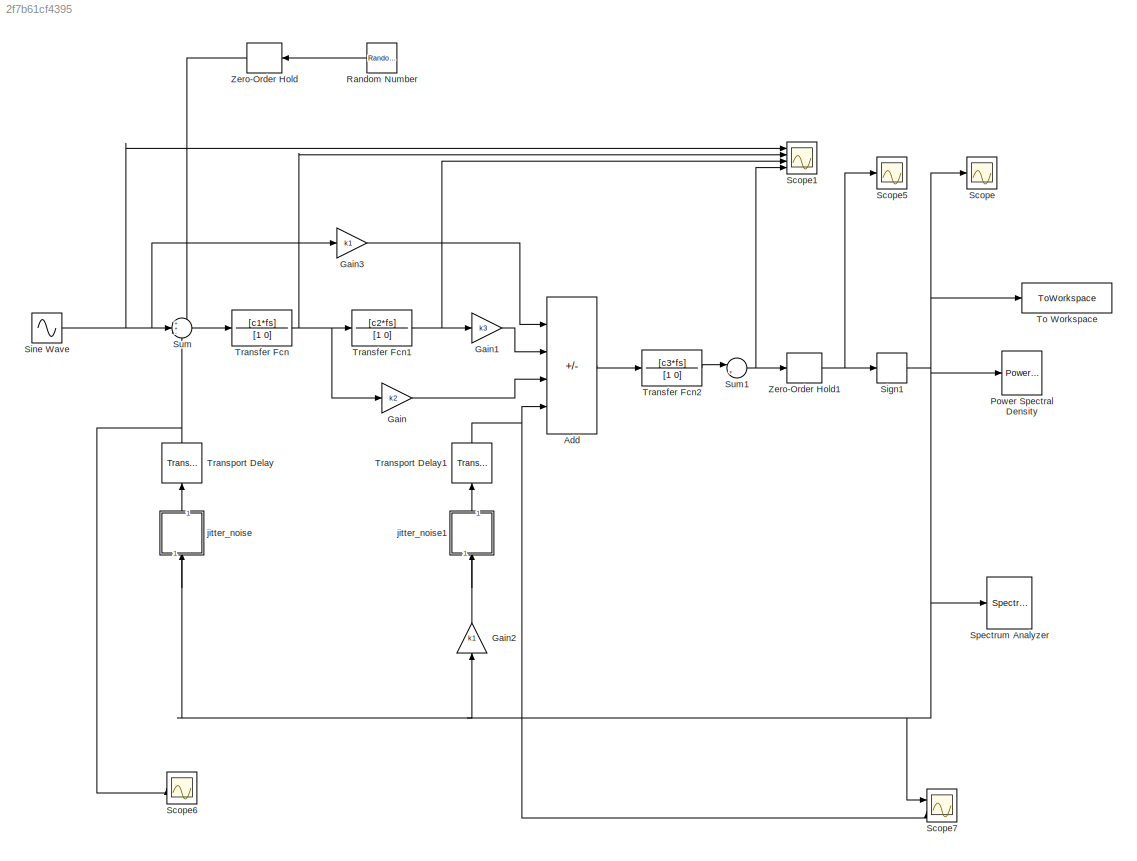
MODEL slx_2f7b61cf4395
KIND model
CONFIG AbsTol = auto
CONFIG EnableMultiTasking = off
CONFIG FixedStep = auto
CONFIG MaxStep = auto
CONFIG MinStep = auto
CONFIG RelTol = 1e-3
CONFIG SampleTimeConstraint = Unconstrained
CONFIG SolverName = VariableStepAuto
CONFIG StartTime = 0.0
CONFIG StopTime = time
BLOCK [Sum] Add
  IconShape = rectangular
  Inputs = +++-
  Ports = [4, 1]
BLOCK [Gain] Gain
  Gain = k2
BLOCK [Gain] Gain1
  Gain = k3
BLOCK [Gain] Gain2
  Gain = k1
  NameLocation = right
BLOCK [Gain] Gain3
  Gain = k1
BLOCK [Reference] Power Spectral Density  REF=SDtoolbox/Power Spectral Density
  Ports = [1]
  SourceBlock = SDtoolbox/Power Spectral Density
BLOCK [RandomNumber] Random Number
  SampleTime = Ts
  Variance = 6.91e-6^2
BLOCK [Scope] Scope
  Floating = off
  NumInputPorts = 1
  Ports = [1]
  ScopeSpecificationString = Simulink.scopes.TimeScopeBlockCfg('CurrentConfiguration', extmgr.ConfigurationSet(extmgr.Configuration('Core','General UI',true),extmgr.Configuration('Core','Source UI',true),extmgr.Configuration('Sources','WiredSimulink',true),extmgr.Configuration('Visuals','Time Domain',true,'SerializedDisplays',{struct('MinYLimReal','-1.25','MaxYLimReal','1.25','YLabelReal','','MinYLimMag','0.00000','MaxYLimMag...<+1409ch>
BLOCK [Scope] Scope1
  Floating = off
  NumInputPorts = 4
  Ports = [4]
  ScopeSpecificationString = Simulink.scopes.TimeScopeBlockCfg('CurrentConfiguration', extmgr.ConfigurationSet(extmgr.Configuration('Core','General UI',true),extmgr.Configuration('Core','Source UI',true),extmgr.Configuration('Sources','WiredSimulink',true,'DataLoggingVariableName','ScopeData1','DataLoggingSaveFormat','StructureWithTime'),extmgr.Configuration('Visuals','Time Domain',true,'SerializedDisplays',{struct('MinYLimRe...<+3509ch>
BLOCK [Scope] Scope5
  Floating = off
  NumInputPorts = 1
  Ports = [1]
  ScopeSpecificationString = Simulink.scopes.TimeScopeBlockCfg('CurrentConfiguration', extmgr.ConfigurationSet(extmgr.Configuration('Core','General UI',true),extmgr.Configuration('Core','Source UI',true),extmgr.Configuration('Sources','WiredSimulink',true,'DataLoggingVariableName','ScopeData5'),extmgr.Configuration('Visuals','Time Domain',true,'SerializedDisplays',{struct('MinYLimReal','-1.20793','MaxYLimReal','1.2083','YLabe...<+1448ch>
BLOCK [Scope] Scope6
  Floating = off
  NumInputPorts = 1
  Ports = [1]
  ScopeSpecificationString = Simulink.scopes.TimeScopeBlockCfg('CurrentConfiguration', extmgr.ConfigurationSet(extmgr.Configuration('Core','General UI',true),extmgr.Configuration('Core','Source UI',true),extmgr.Configuration('Sources','WiredSimulink',true,'DataLoggingVariableName','ScopeData1','DataLoggingSaveFormat','StructureWithTime'),extmgr.Configuration('Visuals','Time Domain',true,'SerializedDisplays',{struct('MinYLimRe...<+1621ch>
BLOCK [Scope] Scope7
  Floating = off
  NumInputPorts = 2
  Ports = [2]
  ScopeSpecificationString = Simulink.scopes.TimeScopeBlockCfg('CurrentConfiguration', extmgr.ConfigurationSet(extmgr.Configuration('Core','General UI',true),extmgr.Configuration('Core','Source UI',true),extmgr.Configuration('Sources','WiredSimulink',true,'DataLoggingVariableName','ScopeData2'),extmgr.Configuration('Visuals','Time Domain',true,'SerializedDisplays',{struct('MinYLimReal','-1.25','MaxYLimReal','1.25','YLabelReal...<+1492ch>
BLOCK [Signum] Sign1
BLOCK [Sin] Sine Wave
  Amplitude = 0.8
  Frequency = fin*2*pi
  Ports = [0, 1]
  SampleTime = 0
BLOCK [SpectrumAnalyzer] Spectrum Analyzer
  Ports = [1]
  ScopeSpecificationString = spbscopes.SpectrumAnalyzerBlockCfg('CurrentConfiguration', extmgr.ConfigurationSet(extmgr.Configuration('Core','General UI',true),extmgr.Configuration('Core','Source UI',true),extmgr.Configuration('Sources','WiredSimulink',true),extmgr.Configuration('Sources','SimulinkEvent',false),extmgr.Configuration('Sources','Simulink',false),extmgr.Configuration('Sources','SPTool',false),extmgr.Configuration(...<+4085ch>
BLOCK [Sum] Sum
  Inputs = ++-
  Ports = [3, 1]
BLOCK [Sum] Sum1
  Inputs = |+-
  Ports = [2, 1]
BLOCK [ToWorkspace] To Workspace
  FixptAsFi = on
  MaxDataPoints = inf
  Ports = [1]
  SampleTime = 1/fs
  VariableName = v
BLOCK [TransferFcn] Transfer Fcn
  Denominator = [1 0]
  Numerator = [c1*fs]
BLOCK [TransferFcn] Transfer Fcn1
  Denominator = [1 0]
  Numerator = [c2*fs]
BLOCK [TransferFcn] Transfer Fcn2
  Denominator = [1 0]
  Numerator = [c3*fs]
BLOCK [TransportDelay] Transport Delay
  DelayTime = Td
  NameLocation = right
  Ports = [1, 1]
BLOCK [TransportDelay] Transport Delay1
  DelayTime = Td
  NameLocation = right
  Ports = [1, 1]
BLOCK [ZeroOrderHold] Zero-Order Hold
  SampleTime = -1
BLOCK [ZeroOrderHold] Zero-Order Hold1
  SampleTime = 1/fs
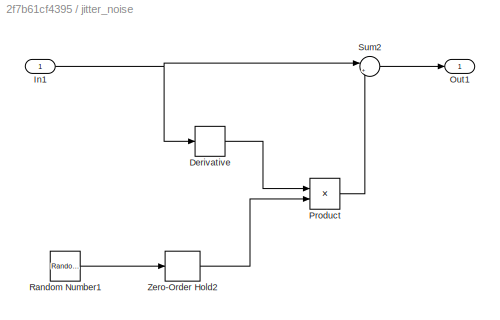
BLOCK [SubSystem] jitter_noise
  NameLocation = right
  Ports = [1, 1]
  RequestExecContextInheritance = off
BLOCK [Derivative] jitter_noise/Derivative
BLOCK [Inport] jitter_noise/In1
BLOCK [Outport] jitter_noise/Out1
BLOCK [Product] jitter_noise/Product
  Ports = [2, 1]
BLOCK [RandomNumber] jitter_noise/Random Number1
  SampleTime = Ts
  Variance = (4e-4*Ts)^2
BLOCK [Sum] jitter_noise/Sum2
  Inputs = |++
  Ports = [2, 1]
BLOCK [ZeroOrderHold] jitter_noise/Zero-Order Hold2
  SampleTime = -1
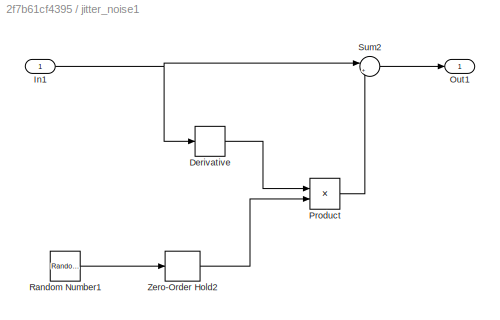
BLOCK [SubSystem] jitter_noise1
  NameLocation = right
  Ports = [1, 1]
  RequestExecContextInheritance = off
BLOCK [Derivative] jitter_noise1/Derivative
BLOCK [Inport] jitter_noise1/In1
BLOCK [Outport] jitter_noise1/Out1
BLOCK [Product] jitter_noise1/Product
  Ports = [2, 1]
BLOCK [RandomNumber] jitter_noise1/Random Number1
  SampleTime = Ts
  Variance = (4e-4*Ts)^2
BLOCK [Sum] jitter_noise1/Sum2
  Inputs = |++
  Ports = [2, 1]
BLOCK [ZeroOrderHold] jitter_noise1/Zero-Order Hold2
  SampleTime = -1
LINE Add:1 -> Transfer Fcn2:1
LINE Gain1:1 -> Add:2
LINE Gain2:1 -> jitter_noise1:1
LINE Gain3:1 -> Add:1
LINE Gain:1 -> Add:3
LINE Random Number:1 -> Zero-Order Hold:1
NET Sign1:1 -> Gain2:1, Power Spectral Density:1, Scope7:1, Scope:1, Spectrum Analyzer:1, To Workspace:1, jitter_noise:1
NET Sine Wave:1 -> Gain3:1, Scope1:1, Sum:2
NET Sum1:1 -> Scope1:4, Zero-Order Hold1:1
LINE Sum:1 -> Transfer Fcn:1
NET Transfer Fcn1:1 -> Gain1:1, Scope1:3
LINE Transfer Fcn2:1 -> Sum1:1
NET Transfer Fcn:1 -> Gain:1, Scope1:2, Transfer Fcn1:1
NET Transport Delay1:1 -> Add:4, Scope7:2
NET Transport Delay:1 -> Scope6:1, Sum:3
NET Zero-Order Hold1:1 -> Scope5:1, Sign1:1
LINE Zero-Order Hold:1 -> Sum:1
LINE jitter_noise/Derivative:1 -> jitter_noise/Product:1
NET jitter_noise/In1:1 -> jitter_noise/Derivative:1, jitter_noise/Sum2:1
LINE jitter_noise/Product:1 -> jitter_noise/Sum2:2
LINE jitter_noise/Random Number1:1 -> jitter_noise/Zero-Order Hold2:1
LINE jitter_noise/Sum2:1 -> jitter_noise/Out1:1
LINE jitter_noise/Zero-Order Hold2:1 -> jitter_noise/Product:2
LINE jitter_noise1/Derivative:1 -> jitter_noise1/Product:1
NET jitter_noise1/In1:1 -> jitter_noise1/Derivative:1, jitter_noise1/Sum2:1
LINE jitter_noise1/Product:1 -> jitter_noise1/Sum2:2
LINE jitter_noise1/Random Number1:1 -> jitter_noise1/Zero-Order Hold2:1
LINE jitter_noise1/Sum2:1 -> jitter_noise1/Out1:1
LINE jitter_noise1/Zero-Order Hold2:1 -> jitter_noise1/Product:2
LINE jitter_noise1:1 -> Transport Delay1:1
LINE jitter_noise:1 -> Transport Delay:1
note: NET lines group one-source signal fan-out (src -> all destinations, sorted); 1:1 wires keep LINE
